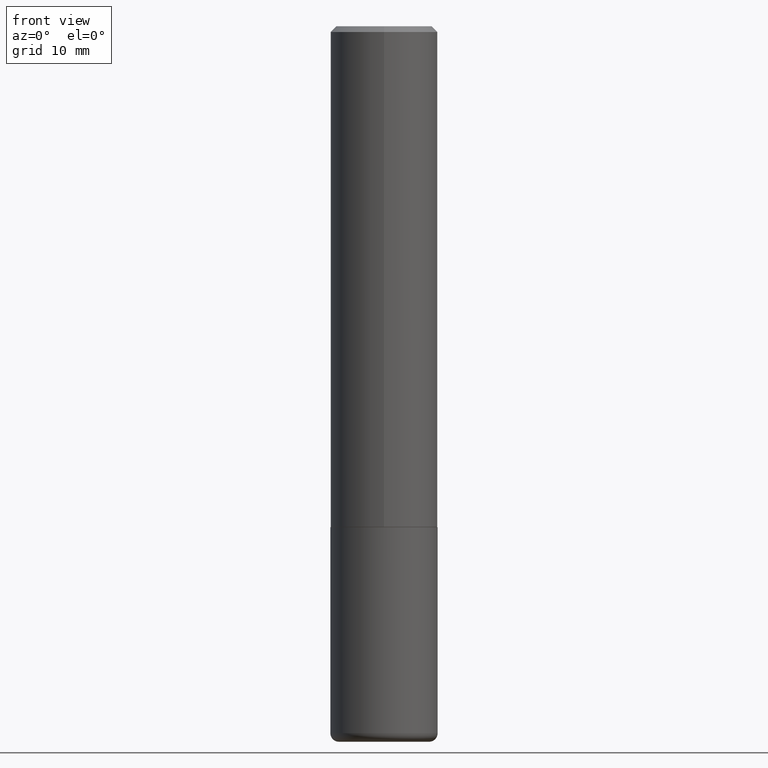
[diagram: clean part render]
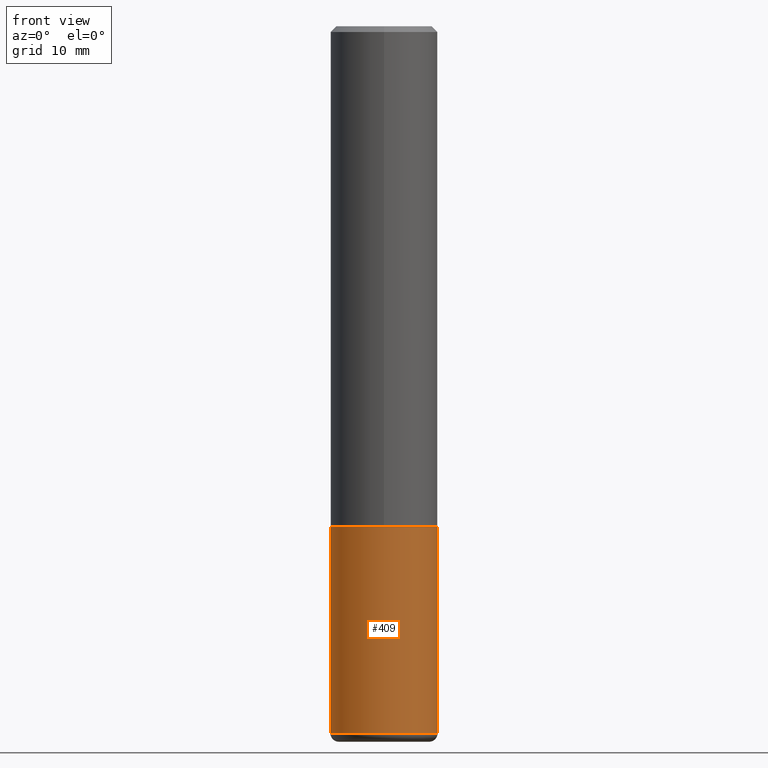
[diagram: same view with one face highlighted and labeled with its STEP entity id]
A machine part, front view. The second image highlights one B-rep face of the part: STEP entity #409.
In plain terms, the highlighted cylindrical surface (partial cylindrical patch) has radius 4.7625 mm, axis along (-0, 0, 1).
Its self-contained STEP definition (entity closure, byte-faithful):
#12 = CARTESIAN_POINT ( 'NONE',  ( -0.1875000000000000555, -7.291691277392382147E-15, -2.470000000000000195 ) ) ;
#22 = VERTEX_POINT ( 'NONE', #242 ) ;
#23 = EDGE_CURVE ( 'NONE', #321, #394, #83, .T. ) ;
#28 = EDGE_CURVE ( 'NONE', #312, #321, #256, .T. ) ;
#62 = DIRECTION ( 'NONE',  ( 1.000000000000000000, -6.982962677686265922E-15, 0.000000000000000000 ) ) ;
#68 = DIRECTION ( 'NONE',  ( 1.000000000000000000, -6.982962677686265922E-15, 4.876176775795935793E-29 ) ) ;
#83 = LINE ( 'NONE', #214, #334 ) ;
#110 = CARTESIAN_POINT ( 'NONE',  ( 4.279570410823989044E-29, -6.110092342975505460E-15, -1.750000000000000222 ) ) ;
#113 = DIRECTION ( 'NONE',  ( 1.000000000000000000, -6.982962677686266711E-15, 0.000000000000000000 ) ) ;
#133 = EDGE_CURVE ( 'NONE', #312, #22, #148, .T. ) ;
#147 = EDGE_CURVE ( 'NONE', #22, #394, #238, .T. ) ;
#148 = LINE ( 'NONE', #311, #272 ) ;
#149 = ORIENTED_EDGE ( 'NONE', *, *, #28, .T. ) ;
#150 = AXIS2_PLACEMENT_3D ( 'NONE', #340, #181, #62 ) ;
#181 = DIRECTION ( 'NONE',  ( -2.445468806185136597E-29, 3.491481338843145583E-15, 1.000000000000000000 ) ) ;
#185 = EDGE_LOOP ( 'NONE', ( #275, #149, #286, #232 ) ) ;
#211 = AXIS2_PLACEMENT_3D ( 'NONE', #110, #376, #113 ) ;
#212 = CARTESIAN_POINT ( 'NONE',  ( 0.1875000000000000555, -9.933264409008746581E-15, -2.470000000000000195 ) ) ;
#214 = CARTESIAN_POINT ( 'NONE',  ( 0.1875000000000000555, -1.309305502066175205E-15, 9.142831454617382414E-30 ) ) ;
#232 = ORIENTED_EDGE ( 'NONE', *, *, #147, .F. ) ;
#237 = CARTESIAN_POINT ( 'NONE',  ( 0.000000000000000000, 0.000000000000000000, 0.000000000000000000 ) ) ;
#238 = CIRCLE ( 'NONE', #211, 0.1875000000000000278 ) ;
#242 = CARTESIAN_POINT ( 'NONE',  ( -0.1875000000000000278, -6.034757995408849879E-15, -1.750000000000000222 ) ) ;
#256 = CIRCLE ( 'NONE', #150, 0.1875000000000000555 ) ;
#264 = DIRECTION ( 'NONE',  ( -2.445468806185136877E-29, 3.491481338843145188E-15, 1.000000000000000000 ) ) ;
#272 = VECTOR ( 'NONE', #387, 39.37007874015748143 ) ;
#275 = ORIENTED_EDGE ( 'NONE', *, *, #133, .F. ) ;
#286 = ORIENTED_EDGE ( 'NONE', *, *, #23, .T. ) ;
#292 = FACE_OUTER_BOUND ( 'NONE', #185, .T. ) ;
#311 = CARTESIAN_POINT ( 'NONE',  ( -0.1875000000000000555, 1.332267629550188243E-15, -9.223003294227950793E-30 ) ) ;
#312 = VERTEX_POINT ( 'NONE', #12 ) ;
#320 = DIRECTION ( 'NONE',  ( -2.445468806185136597E-29, 3.491481338843145583E-15, 1.000000000000000000 ) ) ;
#321 = VERTEX_POINT ( 'NONE', #212 ) ;
#334 = VECTOR ( 'NONE', #264, 39.37007874015748143 ) ;
#340 = CARTESIAN_POINT ( 'NONE',  ( 6.040307951277287977E-29, -8.623958906942569995E-15, -2.470000000000000195 ) ) ;
#360 = CARTESIAN_POINT ( 'NONE',  ( 0.1875000000000000278, -7.419397845041680468E-15, -1.750000000000000222 ) ) ;
#363 = CYLINDRICAL_SURFACE ( 'NONE', #417, 0.1875000000000000555 ) ;
#376 = DIRECTION ( 'NONE',  ( -2.445468806185136597E-29, 3.491481338843145583E-15, 1.000000000000000000 ) ) ;
#387 = DIRECTION ( 'NONE',  ( -2.445468806185136877E-29, 3.491481338843145188E-15, 1.000000000000000000 ) ) ;
#394 = VERTEX_POINT ( 'NONE', #360 ) ;
#409 = ADVANCED_FACE ( 'NONE', ( #292 ), #363, .T. ) ;
#417 = AXIS2_PLACEMENT_3D ( 'NONE', #237, #320, #68 ) ;